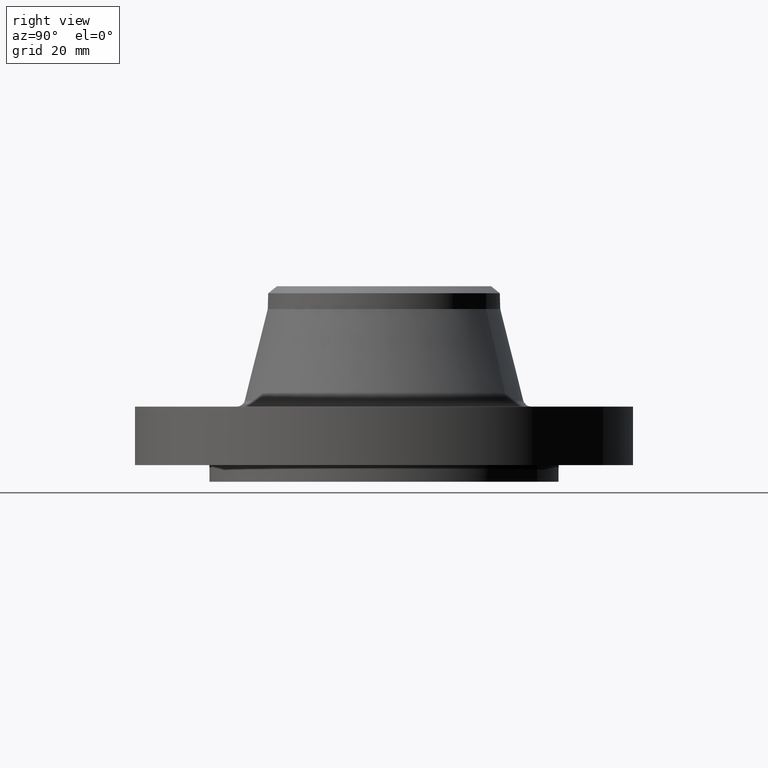
[diagram: clean part render]
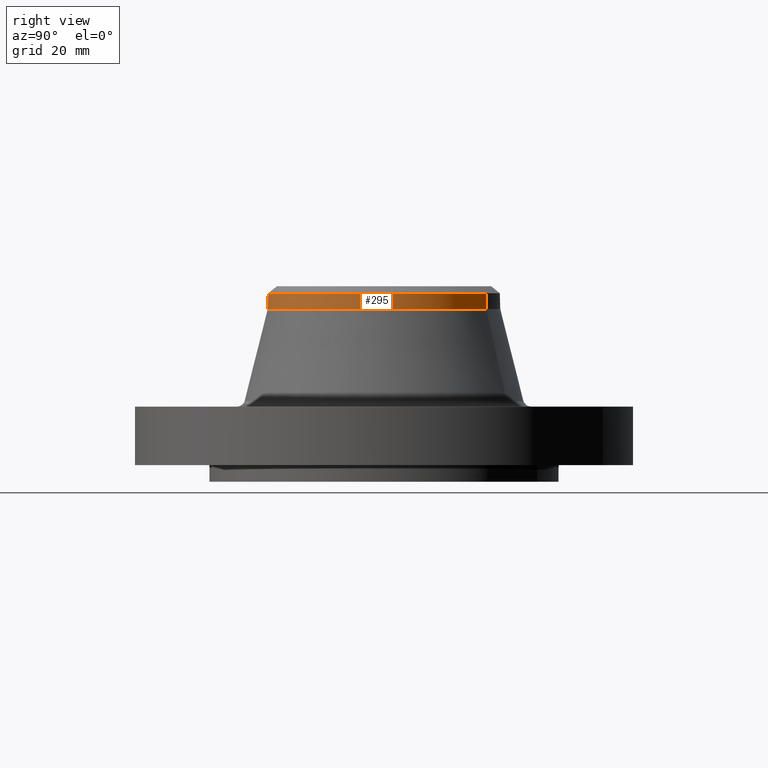
[diagram: same view with one face highlighted and labeled with its STEP entity id]
A machine part, right view. The second image highlights one B-rep face of the part: STEP entity #295.
In plain terms, the highlighted cylindrical surface (partial cylindrical patch) has radius 44.45 mm, axis along (0, 0, -1).
Its self-contained STEP definition (entity closure, byte-faithful):
#228=AXIS2_PLACEMENT_3D('Circle Axis2P3D',#226,#227,$) ;
#260=AXIS2_PLACEMENT_3D('Cylinder Axis2P3D',#257,#258,#259) ;
#278=AXIS2_PLACEMENT_3D('Circle Axis2P3D',#276,#277,$) ;
#285=AXIS2_PLACEMENT_3D('Circle Axis2P3D',#283,#284,$) ;
#223=CARTESIAN_POINT('Vertex',(0.838994692561,1.53576948331,2.34845634604)) ;
#226=CARTESIAN_POINT('Axis2P3D Location',(0.,0.,2.34845634604)) ;
#230=CARTESIAN_POINT('Vertex',(-0.838994692561,-1.53576948331,2.34845634604)) ;
#257=CARTESIAN_POINT('Axis2P3D Location',(0.,0.,1.22)) ;
#262=CARTESIAN_POINT('Line Origine',(-0.838994692561,-1.53576948331,2.46656658226)) ;
#266=CARTESIAN_POINT('Vertex',(-0.838994692561,-1.53576948331,2.58467681848)) ;
#269=CARTESIAN_POINT('Line Origine',(0.838994692561,1.53576948331,2.46656658226)) ;
#273=CARTESIAN_POINT('Vertex',(0.838994692561,1.53576948331,2.58467681848)) ;
#276=CARTESIAN_POINT('Axis2P3D Location',(0.,0.,2.58467681848)) ;
#280=CARTESIAN_POINT('Vertex',(0.838994692561,-1.53576948331,2.58467681848)) ;
#283=CARTESIAN_POINT('Axis2P3D Location',(0.,0.,2.58467681848)) ;
#227=DIRECTION('Axis2P3D Direction',(0.,0.,-0.0393700787402)) ;
#258=DIRECTION('Axis2P3D Direction',(0.,0.,-0.0393700787402)) ;
#259=DIRECTION('Axis2P3D XDirection',(-0.0188750212049,-0.0345504945626,0.)) ;
#263=DIRECTION('Vector Direction',(0.,0.,-0.0393700787402)) ;
#270=DIRECTION('Vector Direction',(0.,0.,-0.0393700787402)) ;
#277=DIRECTION('Axis2P3D Direction',(0.,0.,-0.0393700787402)) ;
#284=DIRECTION('Axis2P3D Direction',(0.,0.,-0.0393700787402)) ;
#264=VECTOR('Line Direction',#263,0.0393700787402) ;
#271=VECTOR('Line Direction',#270,0.0393700787402) ;
#289=ORIENTED_EDGE('',*,*,#268,.F.) ;
#290=ORIENTED_EDGE('',*,*,#232,.F.) ;
#291=ORIENTED_EDGE('',*,*,#275,.T.) ;
#292=ORIENTED_EDGE('',*,*,#282,.F.) ;
#293=ORIENTED_EDGE('',*,*,#287,.T.) ;
#295=ADVANCED_FACE('PartBody',(#294),#261,.T.) ;
#229=CIRCLE('generated circle',#228,1.75000000001) ;
#279=CIRCLE('generated circle',#278,1.75000000001) ;
#286=CIRCLE('generated circle',#285,1.75000000001) ;
#261=CYLINDRICAL_SURFACE('generated cylinder',#260,1.75000000001) ;
#232=EDGE_CURVE('',#224,#231,#229,.T.) ;
#268=EDGE_CURVE('',#231,#267,#265,.F.) ;
#275=EDGE_CURVE('',#224,#274,#272,.F.) ;
#282=EDGE_CURVE('',#281,#274,#279,.F.) ;
#287=EDGE_CURVE('',#281,#267,#286,.T.) ;
#288=EDGE_LOOP('',(#289,#290,#291,#292,#293)) ;
#294=FACE_OUTER_BOUND('',#288,.T.) ;
#265=LINE('Line',#262,#264) ;
#272=LINE('Line',#269,#271) ;
#224=VERTEX_POINT('',#223) ;
#231=VERTEX_POINT('',#230) ;
#267=VERTEX_POINT('',#266) ;
#274=VERTEX_POINT('',#273) ;
#281=VERTEX_POINT('',#280) ;